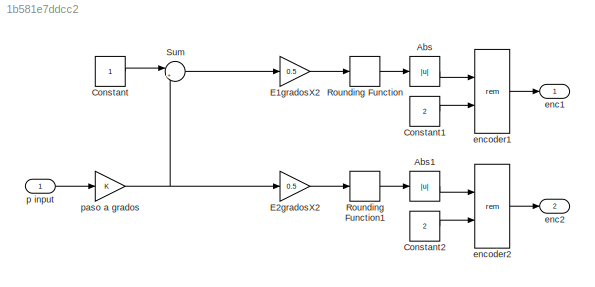
MODEL slx_1b581e7ddcc2
KIND model
CONFIG AbsTol = auto
CONFIG EnableMultiTasking = off
CONFIG FixedStep = auto
CONFIG MaxStep = auto
CONFIG MinStep = auto
CONFIG RelTol = 1e-3
CONFIG SampleTimeConstraint = Unconstrained
CONFIG SolverName = VariableStepAuto
CONFIG StartTime = 0.0
CONFIG StopTime = 10.0
WORKSPACE source: mxarray member
WORKSPACE K = 1
BLOCK [Abs] Abs
  SaturateOnIntegerOverflow = off
BLOCK [Abs] Abs1
  SaturateOnIntegerOverflow = off
BLOCK [Constant] Constant
BLOCK [Constant] Constant1
  Value = 2
BLOCK [Constant] Constant2
  Value = 2
BLOCK [Gain] E1gradosX2
  Gain = 0.5
BLOCK [Gain] E2gradosX2
  Gain = 0.5
BLOCK [Rounding] Rounding Function
BLOCK [Rounding] Rounding Function1
BLOCK [Sum] Sum
  Inputs = |++
  Ports = [2, 1]
BLOCK [Outport] enc1
BLOCK [Outport] enc2
  Port = 2
BLOCK [Math] encoder1
  Operator = rem
  Ports = [2, 1]
BLOCK [Math] encoder2
  Operator = rem
  Ports = [2, 1]
BLOCK [Inport] p input
BLOCK [Gain] paso a grados
  Gain = K
LINE Abs1:1 -> encoder2:1
LINE Abs:1 -> encoder1:1
LINE Constant1:1 -> encoder1:2
LINE Constant2:1 -> encoder2:2
LINE Constant:1 -> Sum:1
LINE E1gradosX2:1 -> Rounding Function:1
LINE E2gradosX2:1 -> Rounding Function1:1
LINE Rounding Function1:1 -> Abs1:1
LINE Rounding Function:1 -> Abs:1
LINE Sum:1 -> E1gradosX2:1
LINE encoder1:1 -> enc1:1
LINE encoder2:1 -> enc2:1
LINE p input:1 -> paso a grados:1
NET paso a grados:1 -> E2gradosX2:1, Sum:2
note: NET lines group one-source signal fan-out (src -> all destinations, sorted); 1:1 wires keep LINE
